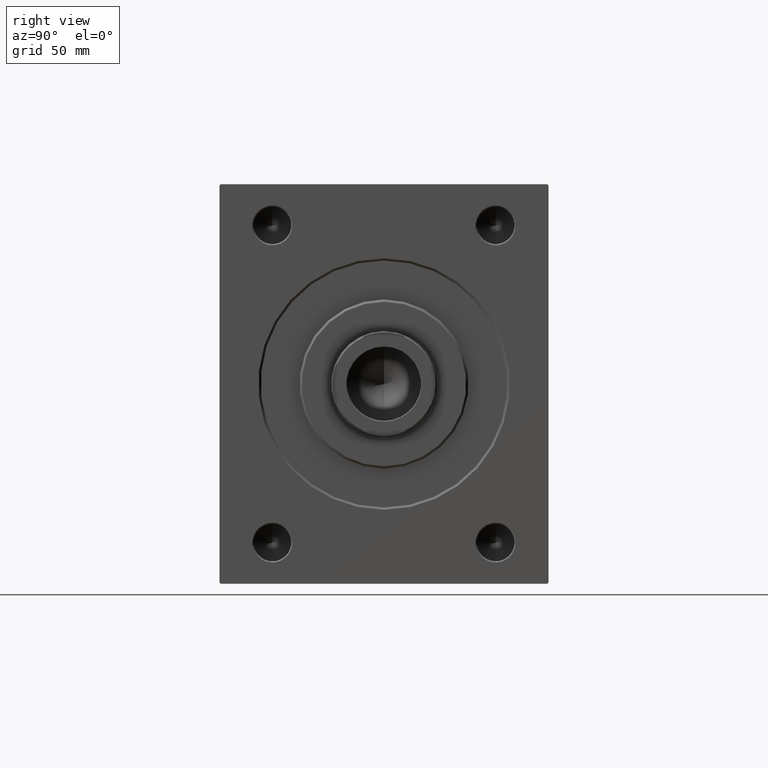
[diagram: clean part render]
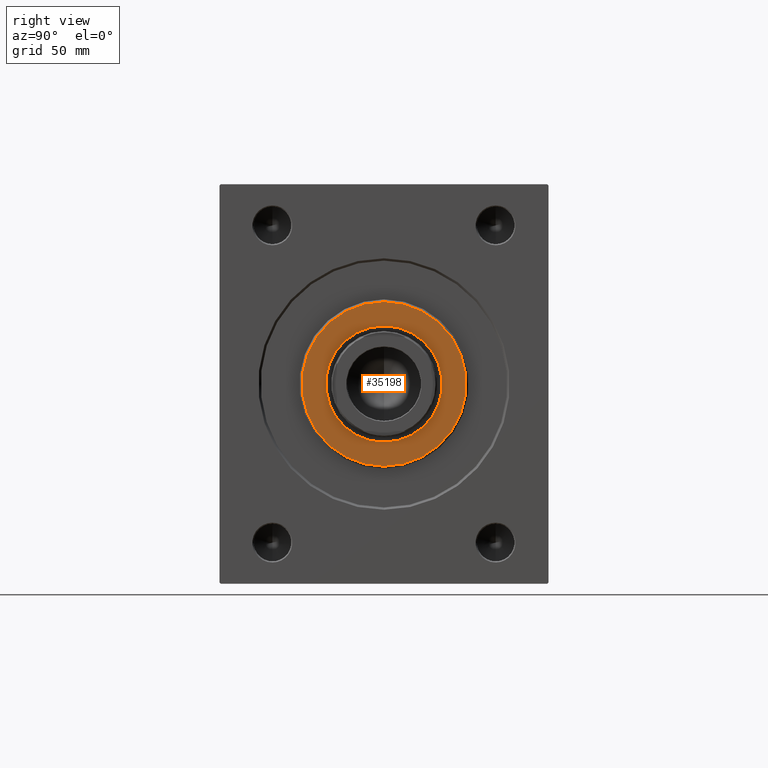
[diagram: same view with one face highlighted and labeled with its STEP entity id]
A machine part, right view. The second image highlights one B-rep face of the part: STEP entity #35198.
In plain terms, the highlighted planar face has unit normal (1, 0, 0).
Its self-contained STEP definition (entity closure, byte-faithful):
#852 = EDGE_CURVE ( 'NONE', #6797, #25634, #43161, .T. ) ;
#1522 = DIRECTION ( 'NONE',  ( 1.000000000000000000, 0.000000000000000000, 0.000000000000000000 ) ) ;
#2175 = DIRECTION ( 'NONE',  ( 0.000000000000000000, 0.000000000000000000, -1.000000000000000000 ) ) ;
#2406 = CIRCLE ( 'NONE', #8192, 34.99999999999997868 ) ;
#4300 = VERTEX_POINT ( 'NONE', #17573 ) ;
#4493 = DIRECTION ( 'NONE',  ( 0.000000000000000000, 0.000000000000000000, -1.000000000000000000 ) ) ;
#6797 = VERTEX_POINT ( 'NONE', #26587 ) ;
#8108 = FACE_BOUND ( 'NONE', #40886, .T. ) ;
#8192 = AXIS2_PLACEMENT_3D ( 'NONE', #42923, #11952, #37453 ) ;
#9341 = DIRECTION ( 'NONE',  ( 1.000000000000000000, -0.000000000000000000, 0.000000000000000000 ) ) ;
#9680 = EDGE_CURVE ( 'NONE', #4300, #38846, #34560, .T. ) ;
#11734 = FACE_OUTER_BOUND ( 'NONE', #37536, .T. ) ;
#11952 = DIRECTION ( 'NONE',  ( 1.000000000000000000, -0.000000000000000000, 0.000000000000000000 ) ) ;
#12570 = CARTESIAN_POINT ( 'NONE',  ( 3.000000000000000000, 0.000000000000000000, 0.000000000000000000 ) ) ;
#13632 = AXIS2_PLACEMENT_3D ( 'NONE', #28090, #35314, #25163 ) ;
#16453 = AXIS2_PLACEMENT_3D ( 'NONE', #40322, #9341, #26320 ) ;
#17573 = CARTESIAN_POINT ( 'NONE',  ( 3.000000000000000000, 0.000000000000000000, -24.75000000000000355 ) ) ;
#19706 = EDGE_CURVE ( 'NONE', #38846, #4300, #33257, .T. ) ;
#20941 = ORIENTED_EDGE ( 'NONE', *, *, #852, .T. ) ;
#24042 = ORIENTED_EDGE ( 'NONE', *, *, #9680, .F. ) ;
#24642 = AXIS2_PLACEMENT_3D ( 'NONE', #43338, #1522, #2175 ) ;
#25163 = DIRECTION ( 'NONE',  ( 0.000000000000000000, 0.000000000000000000, -1.000000000000000000 ) ) ;
#25308 = PLANE ( 'NONE',  #27109 ) ;
#25634 = VERTEX_POINT ( 'NONE', #41909 ) ;
#26320 = DIRECTION ( 'NONE',  ( 0.000000000000000000, 0.000000000000000000, -1.000000000000000000 ) ) ;
#26587 = CARTESIAN_POINT ( 'NONE',  ( 3.000000000000000000, 4.347496136973101704E-15, -34.99999999999997868 ) ) ;
#27109 = AXIS2_PLACEMENT_3D ( 'NONE', #12570, #42707, #4493 ) ;
#28090 = CARTESIAN_POINT ( 'NONE',  ( 3.000000000000000000, 0.000000000000000000, 0.000000000000000000 ) ) ;
#30175 = CARTESIAN_POINT ( 'NONE',  ( 3.000000000000000000, 3.031000827889699650E-15, 24.75000000000000355 ) ) ;
#30232 = ORIENTED_EDGE ( 'NONE', *, *, #31016, .T. ) ;
#31016 = EDGE_CURVE ( 'NONE', #25634, #6797, #2406, .T. ) ;
#33257 = CIRCLE ( 'NONE', #24642, 24.75000000000000355 ) ;
#34560 = CIRCLE ( 'NONE', #13632, 24.75000000000000355 ) ;
#35198 = ADVANCED_FACE ( 'NONE', ( #11734, #8108 ), #25308, .T. ) ;
#35314 = DIRECTION ( 'NONE',  ( 1.000000000000000000, 0.000000000000000000, 0.000000000000000000 ) ) ;
#37236 = ORIENTED_EDGE ( 'NONE', *, *, #19706, .F. ) ;
#37453 = DIRECTION ( 'NONE',  ( 0.000000000000000000, 0.000000000000000000, -1.000000000000000000 ) ) ;
#37536 = EDGE_LOOP ( 'NONE', ( #30232, #20941 ) ) ;
#38846 = VERTEX_POINT ( 'NONE', #30175 ) ;
#40322 = CARTESIAN_POINT ( 'NONE',  ( 3.000000000000000000, 0.000000000000000000, 0.000000000000000000 ) ) ;
#40886 = EDGE_LOOP ( 'NONE', ( #24042, #37236 ) ) ;
#41909 = CARTESIAN_POINT ( 'NONE',  ( 3.000000000000000000, 0.000000000000000000, 34.99999999999997868 ) ) ;
#42707 = DIRECTION ( 'NONE',  ( 1.000000000000000000, -0.000000000000000000, 0.000000000000000000 ) ) ;
#42923 = CARTESIAN_POINT ( 'NONE',  ( 3.000000000000000000, 0.000000000000000000, 0.000000000000000000 ) ) ;
#43161 = CIRCLE ( 'NONE', #16453, 34.99999999999997868 ) ;
#43338 = CARTESIAN_POINT ( 'NONE',  ( 3.000000000000000000, 0.000000000000000000, 0.000000000000000000 ) ) ;